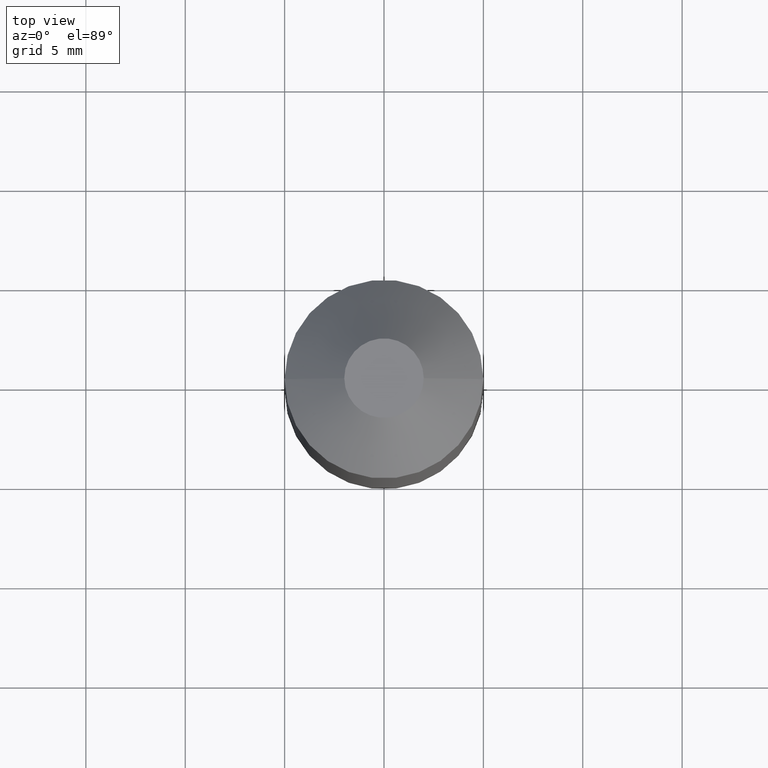
[diagram: clean part render]
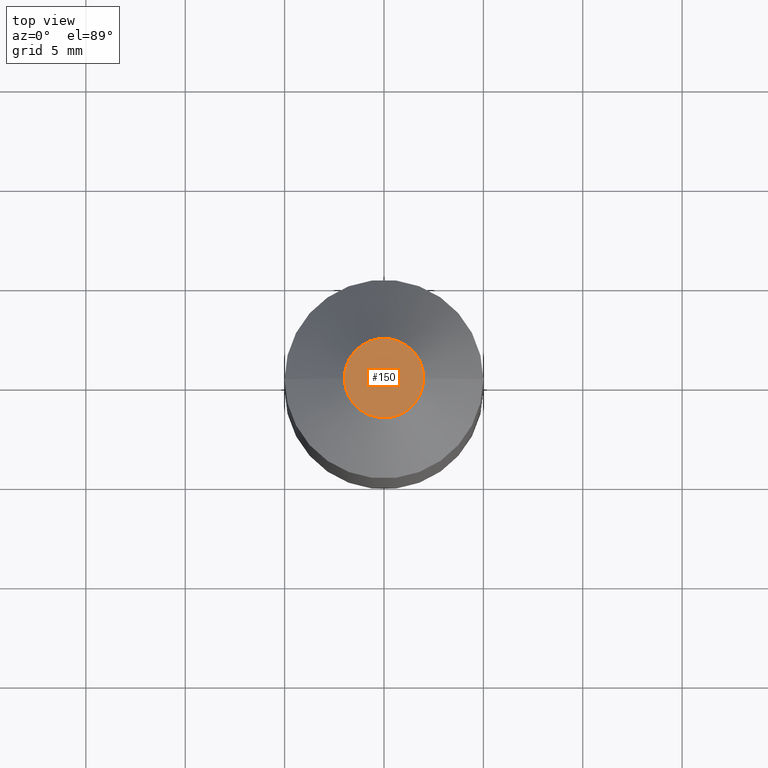
[diagram: same view with one face highlighted and labeled with its STEP entity id]
A machine part, top view. The second image highlights one B-rep face of the part: STEP entity #150.
In plain terms, the highlighted planar face has unit normal (0, 0, 1).
Its self-contained STEP definition (entity closure, byte-faithful):
#10 = CARTESIAN_POINT ( 'NONE',  ( 1.999999999999999100, 4.286263797015613800E-016, 4.000000000000287800 ) ) ;
#11 = CIRCLE ( 'NONE', #259, 1.999999999999899900 ) ;
#12 = AXIS2_PLACEMENT_3D ( 'NONE', #132, #242, #137 ) ;
#57 = CARTESIAN_POINT ( 'NONE',  ( 9.947598300641398800E-014, 0.0000000000000000000, 4.000000000000287800 ) ) ;
#61 = EDGE_CURVE ( 'NONE', #257, #156, #200, .T. ) ;
#84 = CARTESIAN_POINT ( 'NONE',  ( 9.947598300641398800E-014, 0.0000000000000000000, 4.000000000000287800 ) ) ;
#102 = ORIENTED_EDGE ( 'NONE', *, *, #116, .T. ) ;
#107 = DIRECTION ( 'NONE',  ( 1.000000000000000000, 0.0000000000000000000, 0.0000000000000000000 ) ) ;
#113 = DIRECTION ( 'NONE',  ( 0.0000000000000000000, 0.0000000000000000000, 1.000000000000000000 ) ) ;
#116 = EDGE_CURVE ( 'NONE', #156, #257, #11, .T. ) ;
#132 = CARTESIAN_POINT ( 'NONE',  ( 9.947598300641398800E-014, 0.0000000000000000000, 4.000000000000285100 ) ) ;
#137 = DIRECTION ( 'NONE',  ( 1.000000000000000000, 0.0000000000000000000, -0.0000000000000000000 ) ) ;
#138 = DIRECTION ( 'NONE',  ( 1.000000000000000000, 0.0000000000000000000, 0.0000000000000000000 ) ) ;
#141 = FACE_OUTER_BOUND ( 'NONE', #248, .T. ) ;
#147 = AXIS2_PLACEMENT_3D ( 'NONE', #57, #113, #138 ) ;
#150 = ADVANCED_FACE ( 'NONE', ( #141 ), #299, .T. ) ;
#156 = VERTEX_POINT ( 'NONE', #233 ) ;
#200 = CIRCLE ( 'NONE', #147, 1.999999999999899900 ) ;
#205 = ORIENTED_EDGE ( 'NONE', *, *, #61, .T. ) ;
#215 = DIRECTION ( 'NONE',  ( 0.0000000000000000000, 0.0000000000000000000, 1.000000000000000000 ) ) ;
#233 = CARTESIAN_POINT ( 'NONE',  ( -1.999999999999800600, 0.0000000000000000000, 4.000000000000287800 ) ) ;
#242 = DIRECTION ( 'NONE',  ( 0.0000000000000000000, 0.0000000000000000000, 1.000000000000000000 ) ) ;
#248 = EDGE_LOOP ( 'NONE', ( #102, #205 ) ) ;
#257 = VERTEX_POINT ( 'NONE', #10 ) ;
#259 = AXIS2_PLACEMENT_3D ( 'NONE', #84, #215, #107 ) ;
#299 = PLANE ( 'NONE',  #12 ) ;